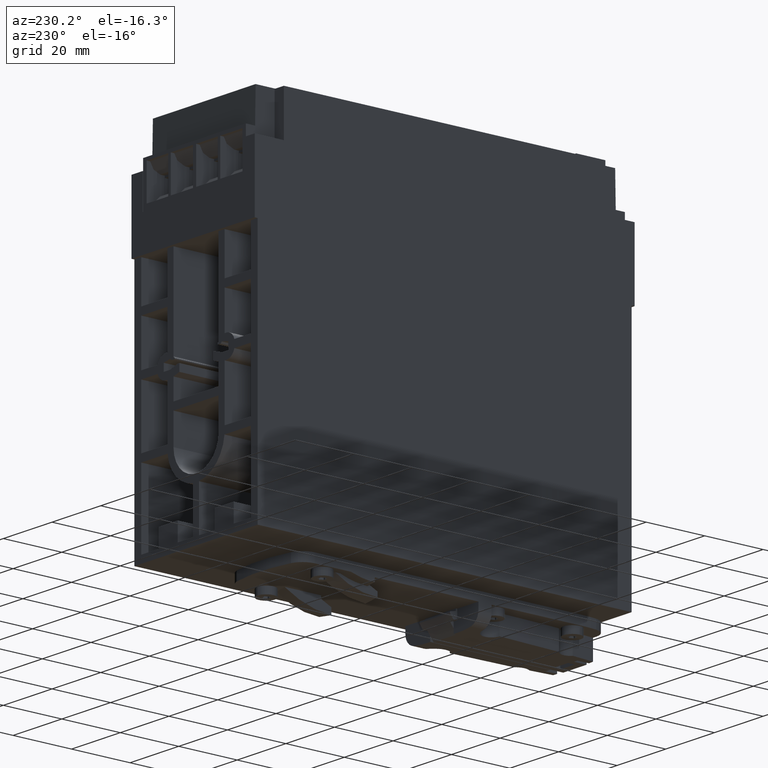
[diagram: clean part render]
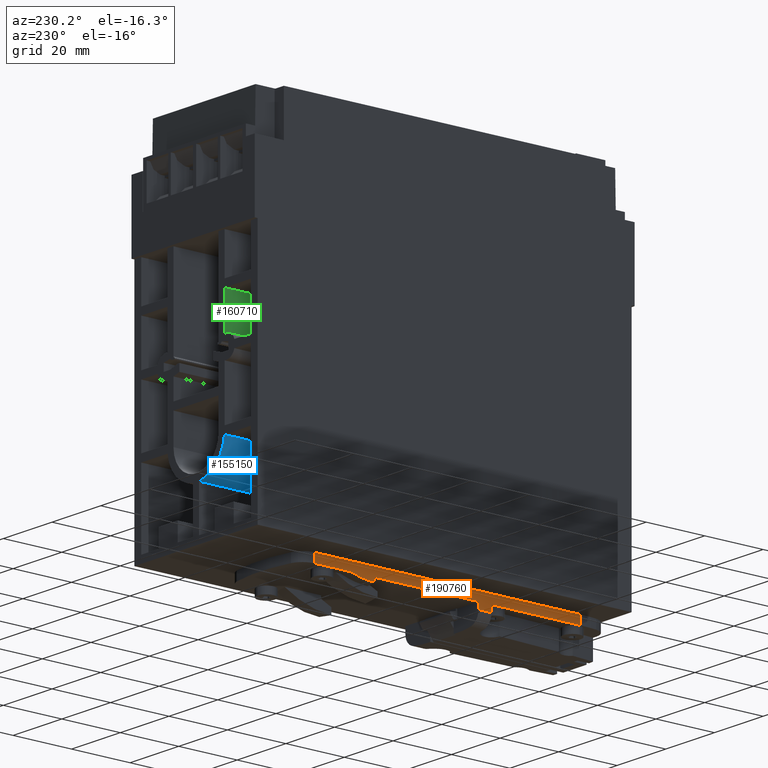
[diagram: same view with three faces highlighted in distinct colors, each labeled with its STEP entity id]
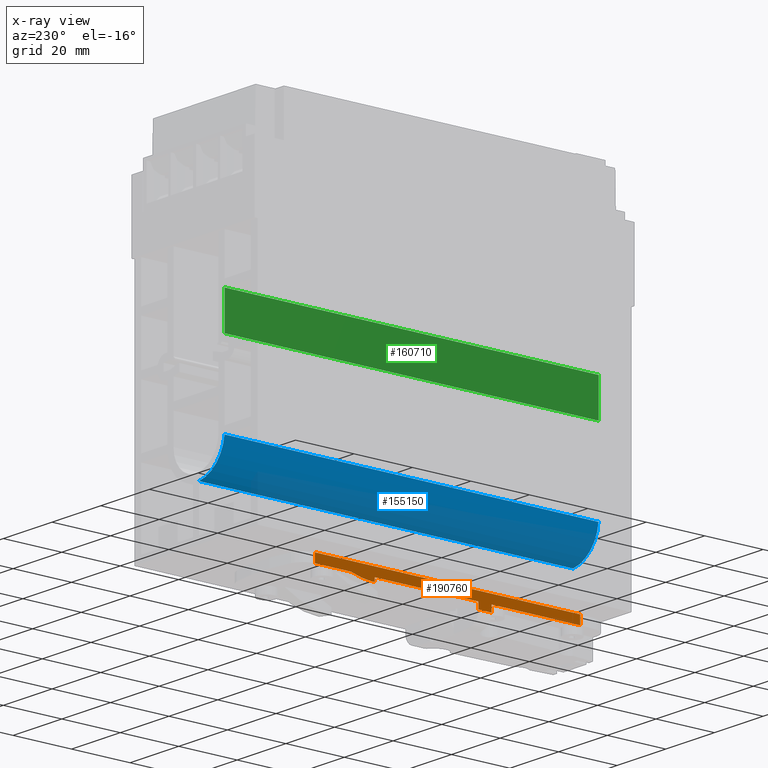
[diagram: x-ray of the same camera — body ghosted, the three highlighted faces saturated]
A machine part, auxiliary view with three faces highlighted in distinct colors.
The next image is the same camera in x-ray (body ghosted, the three faces saturated) — at least one of them is partly hidden behind the body in this view.
Their STEP definitions:

[orange] entity #190760 — the highlighted planar face has unit normal (-1, 0, 0).
#122890=CARTESIAN_POINT('',(-14.7,22.,13.));
#122900=VERTEX_POINT('',#122890);
#122930=CARTESIAN_POINT('',(-14.7,22.,0.));
#122940=DIRECTION('',(0.,0.,-1.));
#122950=VECTOR('',#122940,1.);
#122960=LINE('',#122930,#122950);
#122970=CARTESIAN_POINT('',(-14.7,22.,-77.8748219369606));
#122980=VERTEX_POINT('',#122970);
#122990=EDGE_CURVE('',#122900,#122980,#122960,.T.);
#174710=CARTESIAN_POINT('',(-14.7,19.,-21.85));
#174720=VERTEX_POINT('',#174710);
#174750=CARTESIAN_POINT('',(-14.7,83.125,-21.85));
#174760=DIRECTION('',(0.,-1.,0.));
#174770=VECTOR('',#174760,1.);
#174780=LINE('',#174750,#174770);
#174790=CARTESIAN_POINT('',(-14.7,16.7923839453963,-21.85));
#174800=VERTEX_POINT('',#174790);
#174810=EDGE_CURVE('',#174720,#174800,#174780,.T.);
#175820=CARTESIAN_POINT('',(-14.7,19.,-17.35));
#175830=VERTEX_POINT('',#175820);
#176100=CARTESIAN_POINT('',(-14.7,16.7923839453963,-17.35));
#176110=VERTEX_POINT('',#176100);
#176140=CARTESIAN_POINT('',(-14.7,83.125,-17.35));
#176150=DIRECTION('',(0.,-1.,0.));
#176160=VECTOR('',#176150,1.);
#176170=LINE('',#176140,#176160);
#176180=EDGE_CURVE('',#175830,#176110,#176170,.T.);
#177060=CARTESIAN_POINT('',(-14.7,19.,-77.8748219369606));
#177070=VERTEX_POINT('',#177060);
#177100=CARTESIAN_POINT('',(-14.7,19.,-41.8023651948));
#177110=DIRECTION('',(0.,0.,1.));
#177120=VECTOR('',#177110,1.);
#177130=LINE('',#177100,#177120);
#177140=CARTESIAN_POINT('',(-14.7,19.,-65.5125768132129));
#177150=VERTEX_POINT('',#177140);
#177160=EDGE_CURVE('',#177070,#177150,#177130,.T.);
#177180=CARTESIAN_POINT('',(-25.0776186215084,20.3955839565587,
-46.5601535438707));
#177190=CARTESIAN_POINT('',(-21.5905807945972,19.4368453721936,
-46.5731741129789));
#177200=CARTESIAN_POINT('',(-18.1035429676859,18.4781067878286,
-46.5861946820872));
#177210=CARTESIAN_POINT('',(-13.640036942065,17.2508945633776,
-46.6028613750102));
#177220=CARTESIAN_POINT('',(-12.660256886242,17.0403790005684,
-46.6064833296508));
#177230=CARTESIAN_POINT('',(-8.14091821755865,16.2641347877623,
-46.6222230639109));
#177240=CARTESIAN_POINT('',(-4.56336789369879,15.6496526835195,
-46.6346827832478));
#177250=CARTESIAN_POINT('',(-0.985817569838925,15.0351705792766,
-46.6471425025846));
#177260=CARTESIAN_POINT('',(-25.1649916167112,20.0784121079617,
-50.6421924073186));
#177270=CARTESIAN_POINT('',(-21.633910524371,19.2361930922837,
-50.5318357836005));
#177280=CARTESIAN_POINT('',(-18.1028294320308,18.3939740766056,
-50.4214791598824));
#177290=CARTESIAN_POINT('',(-13.6402583424642,17.3295798777295,
-50.2820107461961));
#177300=CARTESIAN_POINT('',(-12.6611211893232,17.1426456075477,
-50.2525261960147));
#177310=CARTESIAN_POINT('',(-8.14456003524135,16.4459636202719,
-50.1229783188661));
#177320=CARTESIAN_POINT('',(-4.5531594499154,15.8919881483296,
-50.0199666898973));
#177330=CARTESIAN_POINT('',(-0.961758864589459,15.3380126763873,
-49.9169550609285));
#177340=CARTESIAN_POINT('',(-25.2286159205105,19.7499145582029,
-54.7289264098173));
#177350=CARTESIAN_POINT('',(-21.6653659084431,19.0298779617928,
-54.4928450237475));
#177360=CARTESIAN_POINT('',(-18.1021158963756,18.3098413653826,
-54.2567636376776));
#177370=CARTESIAN_POINT('',(-13.6404797428634,17.4082651920814,
-53.9611601173821));
#177380=CARTESIAN_POINT('',(-12.6619854924043,17.244912214527,
-53.8985690623786));
#177390=CARTESIAN_POINT('',(-8.14820185292405,16.6277924527813,
-53.6237335738213));
#177400=CARTESIAN_POINT('',(-4.54990816754623,16.1358375167075,
-53.4046404843024));
#177410=CARTESIAN_POINT('',(-0.951614482168406,15.6438825806337,
-53.1855473947834));
#177420=CARTESIAN_POINT('',(-25.3483174526818,19.1311452973546,
-59.7648053830256));
#177430=CARTESIAN_POINT('',(-21.7245824565934,18.6410368298062,
-59.9867008570299));
#177440=CARTESIAN_POINT('',(-18.100847460505,18.1509283622578,
-60.2085963310343));
#177450=CARTESIAN_POINT('',(-13.6408721296792,17.5477187795885,
-60.4816980730628));
#177460=CARTESIAN_POINT('',(-12.6635597476711,17.431182225792,
-60.5395290575375));
#177470=CARTESIAN_POINT('',(-8.15515728026899,16.9852207036811,
-60.7934817003837));
#177480=CARTESIAN_POINT('',(-4.52981223105649,16.6266093312462,
-60.9976928290782));
#177490=CARTESIAN_POINT('',(-0.904467181843994,16.2679979588113,
-61.2019039577727));
#177500=CARTESIAN_POINT('',(-25.3049814775971,19.2777107734291,
-61.7629856187885));
#177510=CARTESIAN_POINT('',(-21.6952071859746,18.9080046742965,
-62.2725989846918));
#177520=CARTESIAN_POINT('',(-18.0854328943521,18.538298575164,
-62.782212350595));
#177530=CARTESIAN_POINT('',(-13.6456771456137,18.0835873809554,
-63.4089991489147));
#177540=CARTESIAN_POINT('',(-12.671404518455,17.9958168399409,
-63.5356907505506));
#177550=CARTESIAN_POINT('',(-8.17086723811527,17.6606567427181,
-64.0667979880657));
#177560=CARTESIAN_POINT('',(-4.55969251480131,17.3917284801657,
-64.4929517808277));
#177570=CARTESIAN_POINT('',(-0.948517791487344,17.1228002176133,
-64.9191055735897));
#177580=CARTESIAN_POINT('',(-24.9943671864489,20.5506831985733,
-66.0109927855049));
#177590=CARTESIAN_POINT('',(-21.5245274244743,20.4627763647136,
-67.0665682679595));
#177600=CARTESIAN_POINT('',(-18.0546876624996,20.374869530854,
-68.1221437504141));
#177610=CARTESIAN_POINT('',(-13.6552615333447,20.2634120433781,
-69.4605128617771));
#177620=CARTESIAN_POINT('',(-12.6868939039784,20.2418087376547,
-69.7270274896895));
#177630=CARTESIAN_POINT('',(-8.20123589052471,20.1569920027097,
-70.8299468608376));
#177640=CARTESIAN_POINT('',(-4.68996573195039,20.0905994089214,
-71.6932868353989));
#177650=CARTESIAN_POINT('',(-1.17869557337607,20.0242068151332,
-72.5566268099602));
#177660=CARTESIAN_POINT('',(-25.1222429006199,21.874442252729,
-69.995126365357));
#177670=CARTESIAN_POINT('',(-21.579676351948,21.7634649631815,
-70.9041640029749));
#177680=CARTESIAN_POINT('',(-18.0371098032761,21.652487673634,
-71.8132016405929));
#177690=CARTESIAN_POINT('',(-13.6607663109547,21.5153908168118,
-72.9361899867556));
#177700=CARTESIAN_POINT('',(-12.6954847551747,21.4874993528282,
-73.1609179143052));
#177710=CARTESIAN_POINT('',(-8.21665002478796,21.3659222307037,
-74.098858490978));
#177720=CARTESIAN_POINT('',(-4.66197325281681,21.2694312016673,
-74.8432654142271));
#177730=CARTESIAN_POINT('',(-1.10729648084567,21.1729401726308,
-75.5876723374761));
#177740=CARTESIAN_POINT('',(-25.2325160442117,23.1997459438589,
-74.0004307302499));
#177750=CARTESIAN_POINT('',(-21.6260239941322,23.0649258801365,
-74.7523451305107));
#177760=CARTESIAN_POINT('',(-18.0195319440527,22.9301058164141,
-75.5042595307716));
#177770=CARTESIAN_POINT('',(-13.6662710885648,22.7673695902455,
-76.4118671117341));
#177780=CARTESIAN_POINT('',(-12.704075606371,22.7331899680017,
-76.594808338921));
#177790=CARTESIAN_POINT('',(-8.23206415905122,22.5748524586977,
-77.3677701211185));
#177800=CARTESIAN_POINT('',(-4.64017885516555,22.4476769853291,
-77.9886070976438));
#177810=CARTESIAN_POINT('',(-1.04829355127988,22.3205015119605,
-78.609444074169));
#177820=B_SPLINE_SURFACE_WITH_KNOTS('',3,3,((#177180,#177260,#177340,
#177420,#177500,#177580,#177660,#177740),(#177190,#177270,#177350,
#177430,#177510,#177590,#177670,#177750),(#177200,#177280,#177360,
#177440,#177520,#177600,#177680,#177760),(#177210,#177290,#177370,
#177450,#177530,#177610,#177690,#177770),(#177220,#177300,#177380,
#177460,#177540,#177620,#177700,#177780),(#177230,#177310,#177390,
#177470,#177550,#177630,#177710,#177790),(#177240,#177320,#177400,
#177480,#177560,#177640,#177720,#177800),(#177250,#177330,#177410,
#177490,#177570,#177650,#177730,#177810)),.UNSPECIFIED.,.F.,.F.,.F.,(4,2
,2,4),(4,2,2,4),(-1.04425037197643,0.00840241999769925,0.303174667007196
,1.36540567626834),(-0.672680963199468,0.00647129604993427,
0.596721513342289,1.28419559916893),.UNSPECIFIED.);
#179140=CARTESIAN_POINT('',(-14.7,19.,-57.35));
#179150=VERTEX_POINT('',#179140);
#179180=CARTESIAN_POINT('',(-14.7,19.,-41.8023651948));
#179190=DIRECTION('',(0.,0.,1.));
#179200=VECTOR('',#179190,1.);
#179210=LINE('',#179180,#179200);
#179220=EDGE_CURVE('',#179150,#174720,#179210,.T.);
#187810=CARTESIAN_POINT('',(-14.7,17.6580178335676,-57.35));
#187820=VERTEX_POINT('',#187810);
#187850=CARTESIAN_POINT('',(-14.7,83.125,-57.35));
#187860=DIRECTION('',(0.,-1.,0.));
#187870=VECTOR('',#187860,1.);
#187880=LINE('',#187850,#187870);
#187890=EDGE_CURVE('',#179150,#187820,#187880,.T.);
#190120=CARTESIAN_POINT('',(-14.7,19.,-84.0523651948006));
#190130=DIRECTION('',(-1.,0.,0.));
#190140=DIRECTION('',(0.,0.,1.));
#190150=AXIS2_PLACEMENT_3D('',#190120,#190130,#190140);
#190160=PLANE('',#190150);
#190170=ORIENTED_EDGE('',*,*,#122990,.T.);
#190180=CARTESIAN_POINT('',(-14.7,19.,13.));
#190190=DIRECTION('',(0.,-1.,0.));
#190200=VECTOR('',#190190,1.);
#190210=LINE('',#190180,#190200);
#190220=CARTESIAN_POINT('',(-14.7,19.,13.));
#190230=VERTEX_POINT('',#190220);
#190240=EDGE_CURVE('',#122900,#190230,#190210,.T.);
#190250=ORIENTED_EDGE('',*,*,#190240,.F.);
#190260=CARTESIAN_POINT('',(-14.7,19.,-41.8023651948));
#190270=DIRECTION('',(0.,0.,1.));
#190280=VECTOR('',#190270,1.);
#190290=LINE('',#190260,#190280);
#190300=EDGE_CURVE('',#175830,#190230,#190290,.T.);
#190310=ORIENTED_EDGE('',*,*,#190300,.T.);
#190320=ORIENTED_EDGE('',*,*,#176180,.F.);
#190330=CARTESIAN_POINT('',(-14.7,16.7923839453963,-21.85));
#190340=DIRECTION('',(0.,0.,1.));
#190350=VECTOR('',#190340,1.);
#190360=LINE('',#190330,#190350);
#190370=EDGE_CURVE('',#174800,#176110,#190360,.T.);
#190380=ORIENTED_EDGE('',*,*,#190370,.T.);
#190390=ORIENTED_EDGE('',*,*,#174810,.T.);
#190400=ORIENTED_EDGE('',*,*,#179220,.T.);
#190410=ORIENTED_EDGE('',*,*,#187890,.F.);
#190420=CARTESIAN_POINT('',(-14.7,19.,-84.1047303896013));
#190430=DIRECTION('',(-1.,0.,0.));
#190440=DIRECTION('',(0.,0.,1.));
#190450=AXIS2_PLACEMENT_3D('',#190420,#190430,#190440);
#190460=PLANE('',#190450);
#190470=CARTESIAN_POINT('',(-14.7,19.,-65.5125768132129));
#190480=CARTESIAN_POINT('',(-14.7,18.7800409094574,-64.8565865661695));
#190490=CARTESIAN_POINT('',(-14.7,18.5864028092842,-64.1909487890993));
#190500=CARTESIAN_POINT('',(-14.7,18.4202087607686,-63.5188008256594));
#190510=CARTESIAN_POINT('',(-14.7,18.2539566470137,-62.8464180256967));
#190520=CARTESIAN_POINT('',(-14.7,18.115369347938,-62.1687087224249));
#190530=CARTESIAN_POINT('',(-14.7,18.0039723166623,-61.4858259587898));
#190540=CARTESIAN_POINT('',(-14.7,17.8925525365629,-60.8028037409933));
#190550=CARTESIAN_POINT('',(-14.7,17.8083987116909,-60.1145256288753));
#190560=CARTESIAN_POINT('',(-14.7,17.7510644862166,-59.4241226605956));
#190570=CARTESIAN_POINT('',(-14.7,17.7223979419051,-59.0789280212807));
#190580=CARTESIAN_POINT('',(-14.7,17.7004228177254,-58.7332173340454));
#190590=CARTESIAN_POINT('',(-14.7,17.6849988955642,-58.3873963572836));
#190600=CARTESIAN_POINT('',(-14.7,17.6695674795547,-58.0414073603555));
#190610=CARTESIAN_POINT('',(-14.7,17.66173286718,-57.6957899980947));
#190620=CARTESIAN_POINT('',(-14.7,17.6580178335676,-57.35));
#190630=B_SPLINE_CURVE_WITH_KNOTS('',3,(#190470,#190480,#190490,#190500,
#190510,#190520,#190530,#190540,#190550,#190560,#190570,#190580,#190590,
#190600,#190610,#190620),.UNSPECIFIED.,.F.,.F.,(4,3,3,3,3,4),(0.,
2.0769367264021,4.15264792438006,6.23034350342772,7.26923613589257,
8.30703278400112),.UNSPECIFIED.);
#190640=SURFACE_CURVE('',#190630,(#190460,#177820),.CURVE_3D.);
#190650=EDGE_CURVE('',#177150,#187820,#190640,.T.);
#190660=ORIENTED_EDGE('',*,*,#190650,.T.);
#190670=ORIENTED_EDGE('',*,*,#177160,.T.);
#190680=CARTESIAN_POINT('',(-14.7,23.0000024,-77.8748219369606));
#190690=DIRECTION('',(0.,-1.,0.));
#190700=VECTOR('',#190690,1.);
#190710=LINE('',#190680,#190700);
#190720=EDGE_CURVE('',#122980,#177070,#190710,.T.);
#190730=ORIENTED_EDGE('',*,*,#190720,.T.);
#190740=EDGE_LOOP('',(#190730,#190670,#190660,#190410,#190400,#190390,
#190380,#190320,#190310,#190250,#190170));
#190750=FACE_OUTER_BOUND('',#190740,.T.);
#190760=ADVANCED_FACE('',(#190750),#190160,.T.);

[blue] entity #155150 — the highlighted cylindrical surface (partial cylindrical patch) has radius 11.75 mm, axis along (0, 1, 0).
#99460=CARTESIAN_POINT('',(-0.949999999999999,39.3166785544521,22.));
#99470=VERTEX_POINT('',#99460);
#99500=CARTESIAN_POINT('',(0.300000000000006,51.,22.));
#99510=DIRECTION('',(0.,0.,-1.));
#99520=DIRECTION('',(-1.,0.,0.));
#99530=AXIS2_PLACEMENT_3D('',#99500,#99510,#99520);
#99540=CIRCLE('',#99530,11.75);
#99550=CARTESIAN_POINT('',(-11.3833214455479,49.75,22.));
#99560=VERTEX_POINT('',#99550);
#99570=EDGE_CURVE('',#99470,#99560,#99540,.T.);
#105550=CARTESIAN_POINT('',(-11.3833214455479,49.75,-106.));
#105560=VERTEX_POINT('',#105550);
#105590=CARTESIAN_POINT('',(0.300000000000006,51.,-106.));
#105600=DIRECTION('',(0.,0.,-1.));
#105610=DIRECTION('',(-1.,0.,0.));
#105620=AXIS2_PLACEMENT_3D('',#105590,#105600,#105610);
#105630=CIRCLE('',#105620,11.75);
#105640=CARTESIAN_POINT('',(-0.949999999999999,39.3166785544521,-106.));
#105650=VERTEX_POINT('',#105640);
#105660=EDGE_CURVE('',#105650,#105560,#105630,.T.);
#114670=CARTESIAN_POINT('',(-11.3833214455479,49.75,22.5));
#114680=DIRECTION('',(0.,0.,-1.));
#114690=VECTOR('',#114680,1.);
#114700=LINE('',#114670,#114690);
#114710=EDGE_CURVE('',#99560,#105560,#114700,.T.);
#151810=CARTESIAN_POINT('',(-0.949999999999993,39.3166785544521,22.5));
#151820=DIRECTION('',(0.,0.,-1.));
#151830=VECTOR('',#151820,1.);
#151840=LINE('',#151810,#151830);
#151850=EDGE_CURVE('',#99470,#105650,#151840,.T.);
#155040=CARTESIAN_POINT('',(0.300000000000006,51.,22.5));
#155050=DIRECTION('',(0.,0.,-1.));
#155060=DIRECTION('',(-1.,0.,0.));
#155070=AXIS2_PLACEMENT_3D('',#155040,#155050,#155060);
#155080=CYLINDRICAL_SURFACE('',#155070,11.75);
#155090=ORIENTED_EDGE('',*,*,#151850,.F.);
#155100=ORIENTED_EDGE('',*,*,#105660,.F.);
#155110=ORIENTED_EDGE('',*,*,#114710,.T.);
#155120=ORIENTED_EDGE('',*,*,#99570,.T.);
#155130=EDGE_LOOP('',(#155120,#155110,#155100,#155090));
#155140=FACE_OUTER_BOUND('',#155130,.T.);
#155150=ADVANCED_FACE('',(#155140),#155080,.T.);

[green] entity #160710 — the highlighted planar face has unit normal (-1, 0, 0).
#98960=CARTESIAN_POINT('',(-11.45,77.4549663649257,22.));
#98970=VERTEX_POINT('',#98960);
#99000=CARTESIAN_POINT('',(-11.45,0.,22.));
#99010=DIRECTION('',(0.,-1.,0.));
#99020=VECTOR('',#99010,1.);
#99030=LINE('',#99000,#99020);
#99040=CARTESIAN_POINT('',(-11.45,90.,22.));
#99050=VERTEX_POINT('',#99040);
#99060=EDGE_CURVE('',#99050,#98970,#99030,.T.);
#107920=CARTESIAN_POINT('',(-11.45,90.,-106.));
#107930=VERTEX_POINT('',#107920);
#107960=CARTESIAN_POINT('',(-11.45,0.,-106.));
#107970=DIRECTION('',(0.,1.,0.));
#107980=VECTOR('',#107970,1.);
#107990=LINE('',#107960,#107980);
#108000=CARTESIAN_POINT('',(-11.45,77.4549663649257,-106.));
#108010=VERTEX_POINT('',#108000);
#108020=EDGE_CURVE('',#108010,#107930,#107990,.T.);
#157850=CARTESIAN_POINT('',(-11.45,77.4549663649257,22.5));
#157860=DIRECTION('',(0.,0.,1.));
#157870=VECTOR('',#157860,1.);
#157880=LINE('',#157850,#157870);
#157890=EDGE_CURVE('',#108010,#98970,#157880,.T.);
#160550=CARTESIAN_POINT('',(-11.45,77.1224405240489,25.2189));
#160560=DIRECTION('',(-1.,0.,0.));
#160570=DIRECTION('',(0.,1.,0.));
#160580=AXIS2_PLACEMENT_3D('',#160550,#160560,#160570);
#160590=PLANE('',#160580);
#160600=ORIENTED_EDGE('',*,*,#157890,.T.);
#160610=ORIENTED_EDGE('',*,*,#108020,.F.);
#160620=CARTESIAN_POINT('',(-11.45,90.,0.));
#160630=DIRECTION('',(0.,0.,1.));
#160640=VECTOR('',#160630,1.);
#160650=LINE('',#160620,#160640);
#160660=EDGE_CURVE('',#107930,#99050,#160650,.T.);
#160670=ORIENTED_EDGE('',*,*,#160660,.F.);
#160680=ORIENTED_EDGE('',*,*,#99060,.F.);
#160690=EDGE_LOOP('',(#160680,#160670,#160610,#160600));
#160700=FACE_OUTER_BOUND('',#160690,.T.);
#160710=ADVANCED_FACE('',(#160700),#160590,.T.);